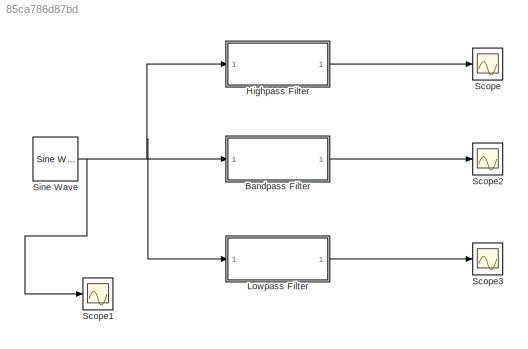
MODEL slx_85ca786d87bd
KIND model
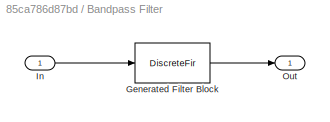
BLOCK [SubSystem] Bandpass Filter
  CopyFcn = fdesignblkfcn(gcbh, {'CopyFcn'});
  DialogController = fdesignblkfcn
  InitFcn = fdesignblkfcn(gcbh, {'InitFcn'});
  Ports = [1, 1]
  RequestExecContextInheritance = off
  UserDataPersistent = on
BLOCK [DiscreteFir] Bandpass Filter/Generated Filter Block
  Coefficients = [-0.020149521042045128 0.034059968047207262 0.0075914525656812643 0.024922723126907999 0.036711656123330973 -0.04895110842624488 -0.071287837277960037 0.092623520628736106 0.11310522068913756 -0.12901637626411594 -0.14173601586091997 0.14791819186205274 0.14791819186205274 -0.14173601586091997 -0.12901637626411594 0.11310522068913756 0.092623520628736106 -0.071287837277960037 -0.04895110842624488 ...<+107ch>
  InputProcessing = Columns as channels (frame based)
  Ports = [1, 1]
  Tag = BlockMethodSubSystem
BLOCK [Inport] Bandpass Filter/In
  IconDisplay = Port number
BLOCK [Outport] Bandpass Filter/Out
  IconDisplay = Port number
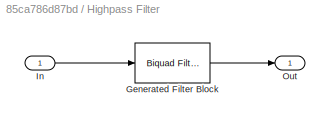
BLOCK [SubSystem] Highpass Filter
  CopyFcn = fdesignblkfcn(gcbh, {'CopyFcn'});
  DialogController = fdesignblkfcn
  InitFcn = fdesignblkfcn(gcbh, {'InitFcn'});
  Ports = [1, 1]
  RequestExecContextInheritance = off
  UserDataPersistent = on
BLOCK [Reference] Highpass Filter/Generated Filter Block  REF=dsparch4/Biquad Filter
  BiQuadCoeffs = [0.15663067858621108 -0.31326135717242215 0.15663067858621108 1 0.19186656109486769 0.21295186269147323;0.60757270160483956 -1.2151454032096791 0.60757270160483956 1 -1.3497240588664159 0.91512325088943858;1 -2 1 1 -0.88766596653753482 0.67648220833345452]
  CoeffSource = Specify via dialog
  FilterSource = Specify via dialog
  IC = 0
  ICden = 0
  ICnum = 0
  IIRFiltStruct = Direct form II
  InputProcessing = Columns as channels (frame based)
  LockScale = off
  Ports = [1, 1]
  ScaleValueMode = Specify via input port (g)
  ScaleValues = [0.76985328984737433;1;1;1.624819010617901]
  SourceBlock = dsparch4/Biquad Filter
  SourceType = Biquad Filter
  Tag = BlockMethodSubSystem
  UserDataPersistent = on
  a0Flag = Warning
  accumFracLength = 30
  accumMode = Same as product output
  accumWordLength = 32
  allowOverrides = on
  denAccumFracLength = 30
  denProdOutputFracLength = 30
  dfiltObjectName = dfilt.df2tsos([1 0.3 0.4],[1 0.1 0.2])
  firstCoeffFracLength = 15
  firstCoeffMode = Same word length as input
  firstCoeffWordLength = 16
  memoryFracLength = 15
  memoryMode = Same as accumulator
  memoryWordLength = 16
  multiplicandFracLength = 30
  multiplicandMode = Same as output
  multiplicandWordLength = 32
  optimizeScaleValues = off
  outputFracLength = 15
  outputMode = Same as accumulator
  outputWordLength = 16
  overflowMode = off
  prodOutputFracLength = 30
  prodOutputMode = Same as input
  prodOutputWordLength = 32
  roundingMode = Floor
  scaleValueFracLength = 14
  secondCoeffFracLength = 15
  secondCoeffMode = Same as numerator
  secondCoeffWordLength = 16
  secondMemoryFracLength = 15
  stageInputFracLength = 15
  stageInputMode = Same as input
  stageInputWordLength = 16
  stageOutputFracLength = 15
  stageOutputMode = Same as section input
  stageOutputWordLength = 16
BLOCK [Inport] Highpass Filter/In
  IconDisplay = Port number
BLOCK [Outport] Highpass Filter/Out
  IconDisplay = Port number
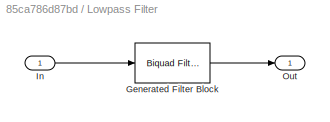
BLOCK [SubSystem] Lowpass Filter
  CopyFcn = fdesignblkfcn(gcbh, {'CopyFcn'});
  DialogController = fdesignblkfcn
  InitFcn = fdesignblkfcn(gcbh, {'InitFcn'});
  Ports = [1, 1]
  RequestExecContextInheritance = off
  UserDataPersistent = on
BLOCK [Reference] Lowpass Filter/Generated Filter Block  REF=dsparch4/Biquad Filter
  BiQuadCoeffs = [0.080963950232687348 0.1619279004653747 0.080963950232687348 1 -1.6956365700099822 0.74088057607053015;0.046611956969773535 0.093223913939547071 0.046611956969773535 1 -1.5640244357405921 0.92941902940892496;0.27465861782299883 0.54931723564599766 0.27465861782299883 1 -1.6097484117708694 0.81117230674854135]
  CoeffSource = Specify via dialog
  FilterSource = Specify via dialog
  IC = 0
  ICden = 0
  ICnum = 0
  IIRFiltStruct = Direct form II
  InputProcessing = Columns as channels (frame based)
  LockScale = off
  Ports = [1, 1]
  ScaleValueMode = Specify via input port (g)
  ScaleValues = [0.044737522379358033;1;1;1]
  SourceBlock = dsparch4/Biquad Filter
  SourceType = Biquad Filter
  Tag = BlockMethodSubSystem
  UserDataPersistent = on
  a0Flag = Warning
  accumFracLength = 30
  accumMode = Same as product output
  accumWordLength = 32
  allowOverrides = on
  denAccumFracLength = 30
  denProdOutputFracLength = 30
  dfiltObjectName = dfilt.df2tsos([1 0.3 0.4],[1 0.1 0.2])
  firstCoeffFracLength = 15
  firstCoeffMode = Same word length as input
  firstCoeffWordLength = 16
  memoryFracLength = 15
  memoryMode = Same as accumulator
  memoryWordLength = 16
  multiplicandFracLength = 30
  multiplicandMode = Same as output
  multiplicandWordLength = 32
  optimizeScaleValues = off
  outputFracLength = 15
  outputMode = Same as accumulator
  outputWordLength = 16
  overflowMode = off
  prodOutputFracLength = 30
  prodOutputMode = Same as input
  prodOutputWordLength = 32
  roundingMode = Floor
  scaleValueFracLength = 14
  secondCoeffFracLength = 15
  secondCoeffMode = Same as numerator
  secondCoeffWordLength = 16
  secondMemoryFracLength = 15
  stageInputFracLength = 15
  stageInputMode = Same as input
  stageInputWordLength = 16
  stageOutputFracLength = 15
  stageOutputMode = Same as section input
  stageOutputWordLength = 16
BLOCK [Inport] Lowpass Filter/In
  IconDisplay = Port number
BLOCK [Outport] Lowpass Filter/Out
  IconDisplay = Port number
BLOCK [Scope] Scope
  Floating = off
  NumInputPorts = 1
  Ports = [1]
  ShowLegends = off
BLOCK [Scope] Scope1
  Floating = off
  NumInputPorts = 1
  Ports = [1]
  SaveName = ScopeData1
  ShowLegends = off
BLOCK [Scope] Scope2
  Floating = off
  NumInputPorts = 1
  Ports = [1]
  SaveName = ScopeData2
  ShowLegends = off
BLOCK [Scope] Scope3
  Floating = off
  NumInputPorts = 1
  Ports = [1]
  SaveName = ScopeData3
  ShowLegends = off
BLOCK [Reference] Sine Wave  REF=dspsrcs4/Sine Wave
  Amplitude = 1
  CompMethod = Trigonometric fcn
  Frequency = 150
  LastOutDataTypeStr = double
  OutComplex = Real
  OutDataTypeStr = double
  Phase = 0
  Ports = [0, 1]
  ResetState = Restart at time zero
  SampleMode = Continuous
  SampleTime = 1/1000
  SamplesPerFrame = 1
  SourceBlock = dspsrcs4/Sine Wave
  SourceType = Sine Wave
  TableSize = Speed
  additionalParams = off
  allowOverrides = on
  dataType = double
  fracBitsMode = Best precision
  numFracBits = 15
  udDataType = sfix(16)
  wordLen = 16
LINE Bandpass Filter:1 -> Scope2:1
LINE Highpass Filter:1 -> Scope:1
LINE Lowpass Filter:1 -> Scope3:1
NET Sine Wave:1 -> Bandpass Filter:1, Highpass Filter:1, Lowpass Filter:1, Scope1:1
note: NET lines group one-source signal fan-out (src -> all destinations, sorted); 1:1 wires keep LINE
